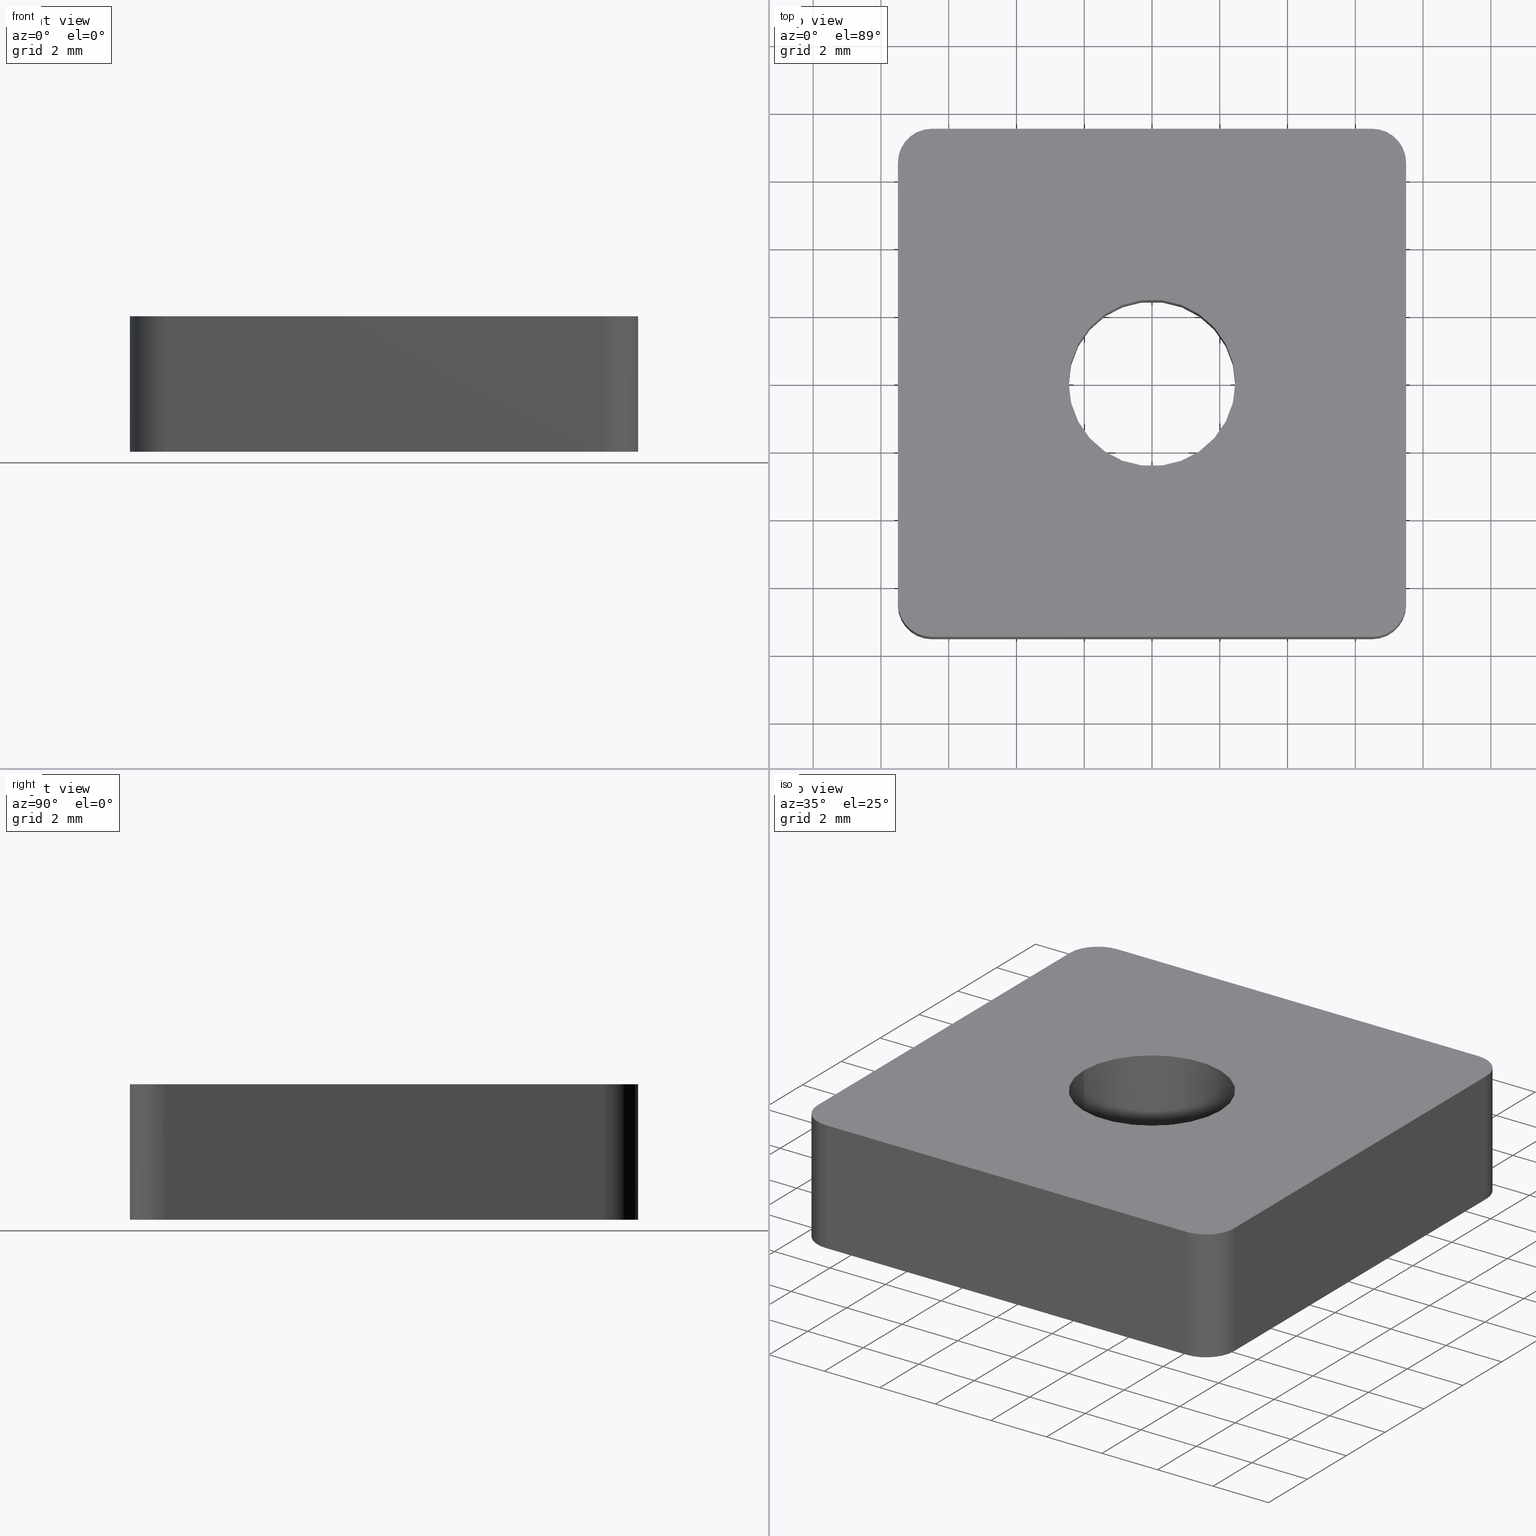
[diagram: canonical four-view strip — front | top / right | iso, engineering-drawing reading convention]
A machine part, canonical four-view strip (front | top / right | iso — engineering-drawing reading convention). The complete STEP part file that produces these views, byte-faithful:
ISO-10303-21;
HEADER;
/* Generated by software containing ST-Developer
 * from STEP Tools, Inc. (www.steptools.com) 
 */

FILE_DESCRIPTION(
/* description */ ('CURSORE ZINC. 15X15X4 M6'),
/* implementation_level */ '2;1');

FILE_NAME(
/* name */ 
'C:\\Users\\tecnico7\\Desktop\\NUOVI DISEGNI 3D\\DDDCU0000041.stp',
/* time_stamp */ '2022-11-18T10:49:37+01:00',
/* author */ ('tecnico7'),
/* organization */ (''),
/* preprocessor_version */ 'ST-DEVELOPER v18.1',
/* originating_system */ 'Autodesk Inventor 2022',
/* authorisation */ '');

FILE_SCHEMA (('AUTOMOTIVE_DESIGN { 1 0 10303 214 3 1 1 }'));
ENDSEC;

DATA;
#10=MECHANICAL_DESIGN_GEOMETRIC_PRESENTATION_REPRESENTATION('',(#13),#371);
#11=SHAPE_REPRESENTATION_RELATIONSHIP('SRR','None',#378,#12);
#12=ADVANCED_BREP_SHAPE_REPRESENTATION('',(#14),#370);
#13=STYLED_ITEM('',(#387),#14);
#14=MANIFOLD_SOLID_BREP('Importato1',#206);
#15=FACE_BOUND('',#40,.T.);
#16=FACE_BOUND('',#42,.T.);
#17=PLANE('',#232);
#18=PLANE('',#233);
#19=PLANE('',#234);
#20=PLANE('',#235);
#21=PLANE('',#236);
#22=PLANE('',#241);
#23=FACE_OUTER_BOUND('',#34,.T.);
#24=FACE_OUTER_BOUND('',#35,.T.);
#25=FACE_OUTER_BOUND('',#36,.T.);
#26=FACE_OUTER_BOUND('',#37,.T.);
#27=FACE_OUTER_BOUND('',#38,.T.);
#28=FACE_OUTER_BOUND('',#39,.T.);
#29=FACE_OUTER_BOUND('',#41,.T.);
#30=FACE_OUTER_BOUND('',#43,.T.);
#31=FACE_OUTER_BOUND('',#44,.T.);
#32=FACE_OUTER_BOUND('',#45,.T.);
#33=FACE_OUTER_BOUND('',#46,.T.);
#34=EDGE_LOOP('',(#136,#137,#138,#139));
#35=EDGE_LOOP('',(#140,#141,#142,#143));
#36=EDGE_LOOP('',(#144,#145,#146,#147));
#37=EDGE_LOOP('',(#148,#149,#150,#151));
#38=EDGE_LOOP('',(#152,#153,#154,#155));
#39=EDGE_LOOP('',(#156,#157,#158,#159,#160,#161,#162,#163));
#40=EDGE_LOOP('',(#164));
#41=EDGE_LOOP('',(#165,#166,#167,#168,#169,#170,#171,#172));
#42=EDGE_LOOP('',(#173));
#43=EDGE_LOOP('',(#174,#175,#176,#177));
#44=EDGE_LOOP('',(#178,#179,#180,#181));
#45=EDGE_LOOP('',(#182,#183,#184,#185));
#46=EDGE_LOOP('',(#186,#187,#188,#189));
#47=LINE('',#316,#64);
#48=LINE('',#321,#65);
#49=LINE('',#323,#66);
#50=LINE('',#325,#67);
#51=LINE('',#326,#68);
#52=LINE('',#330,#69);
#53=LINE('',#332,#70);
#54=LINE('',#334,#71);
#55=LINE('',#335,#72);
#56=LINE('',#339,#73);
#57=LINE('',#341,#74);
#58=LINE('',#343,#75);
#59=LINE('',#344,#76);
#60=LINE('',#348,#77);
#61=LINE('',#350,#78);
#62=LINE('',#352,#79);
#63=LINE('',#353,#80);
#64=VECTOR('',#256,2.4585);
#65=VECTOR('',#261,13.);
#66=VECTOR('',#262,4.);
#67=VECTOR('',#263,13.);
#68=VECTOR('',#264,4.);
#69=VECTOR('',#267,13.);
#70=VECTOR('',#268,4.);
#71=VECTOR('',#269,13.);
#72=VECTOR('',#270,4.);
#73=VECTOR('',#273,13.);
#74=VECTOR('',#274,4.);
#75=VECTOR('',#275,13.);
#76=VECTOR('',#276,4.);
#77=VECTOR('',#279,13.);
#78=VECTOR('',#280,4.);
#79=VECTOR('',#281,13.);
#80=VECTOR('',#282,4.);
#81=CIRCLE('',#230,2.4585);
#82=CIRCLE('',#231,2.4585);
#83=CIRCLE('',#237,1.);
#84=CIRCLE('',#238,1.);
#85=CIRCLE('',#239,1.);
#86=CIRCLE('',#240,1.);
#87=CIRCLE('',#242,1.);
#88=CIRCLE('',#243,1.);
#89=CIRCLE('',#244,1.);
#90=CIRCLE('',#245,1.);
#91=VERTEX_POINT('',#313);
#92=VERTEX_POINT('',#315);
#93=VERTEX_POINT('',#319);
#94=VERTEX_POINT('',#320);
#95=VERTEX_POINT('',#322);
#96=VERTEX_POINT('',#324);
#97=VERTEX_POINT('',#328);
#98=VERTEX_POINT('',#329);
#99=VERTEX_POINT('',#331);
#100=VERTEX_POINT('',#333);
#101=VERTEX_POINT('',#337);
#102=VERTEX_POINT('',#338);
#103=VERTEX_POINT('',#340);
#104=VERTEX_POINT('',#342);
#105=VERTEX_POINT('',#346);
#106=VERTEX_POINT('',#347);
#107=VERTEX_POINT('',#349);
#108=VERTEX_POINT('',#351);
#109=EDGE_CURVE('',#91,#91,#81,.T.);
#110=EDGE_CURVE('',#91,#92,#47,.T.);
#111=EDGE_CURVE('',#92,#92,#82,.T.);
#112=EDGE_CURVE('',#93,#94,#48,.T.);
#113=EDGE_CURVE('',#93,#95,#49,.T.);
#114=EDGE_CURVE('',#95,#96,#50,.T.);
#115=EDGE_CURVE('',#96,#94,#51,.T.);
#116=EDGE_CURVE('',#97,#98,#52,.T.);
#117=EDGE_CURVE('',#98,#99,#53,.T.);
#118=EDGE_CURVE('',#100,#99,#54,.T.);
#119=EDGE_CURVE('',#100,#97,#55,.T.);
#120=EDGE_CURVE('',#101,#102,#56,.T.);
#121=EDGE_CURVE('',#102,#103,#57,.T.);
#122=EDGE_CURVE('',#104,#103,#58,.T.);
#123=EDGE_CURVE('',#104,#101,#59,.T.);
#124=EDGE_CURVE('',#105,#106,#60,.T.);
#125=EDGE_CURVE('',#105,#107,#61,.T.);
#126=EDGE_CURVE('',#107,#108,#62,.T.);
#127=EDGE_CURVE('',#108,#106,#63,.T.);
#128=EDGE_CURVE('',#103,#105,#83,.T.);
#129=EDGE_CURVE('',#106,#93,#84,.T.);
#130=EDGE_CURVE('',#94,#100,#85,.T.);
#131=EDGE_CURVE('',#99,#104,#86,.T.);
#132=EDGE_CURVE('',#107,#102,#87,.T.);
#133=EDGE_CURVE('',#101,#98,#88,.T.);
#134=EDGE_CURVE('',#97,#96,#89,.T.);
#135=EDGE_CURVE('',#95,#108,#90,.T.);
#136=ORIENTED_EDGE('',*,*,#109,.F.);
#137=ORIENTED_EDGE('',*,*,#110,.T.);
#138=ORIENTED_EDGE('',*,*,#111,.F.);
#139=ORIENTED_EDGE('',*,*,#110,.F.);
#140=ORIENTED_EDGE('',*,*,#112,.F.);
#141=ORIENTED_EDGE('',*,*,#113,.T.);
#142=ORIENTED_EDGE('',*,*,#114,.T.);
#143=ORIENTED_EDGE('',*,*,#115,.T.);
#144=ORIENTED_EDGE('',*,*,#116,.T.);
#145=ORIENTED_EDGE('',*,*,#117,.T.);
#146=ORIENTED_EDGE('',*,*,#118,.F.);
#147=ORIENTED_EDGE('',*,*,#119,.T.);
#148=ORIENTED_EDGE('',*,*,#120,.T.);
#149=ORIENTED_EDGE('',*,*,#121,.T.);
#150=ORIENTED_EDGE('',*,*,#122,.F.);
#151=ORIENTED_EDGE('',*,*,#123,.T.);
#152=ORIENTED_EDGE('',*,*,#124,.F.);
#153=ORIENTED_EDGE('',*,*,#125,.T.);
#154=ORIENTED_EDGE('',*,*,#126,.T.);
#155=ORIENTED_EDGE('',*,*,#127,.T.);
#156=ORIENTED_EDGE('',*,*,#122,.T.);
#157=ORIENTED_EDGE('',*,*,#128,.T.);
#158=ORIENTED_EDGE('',*,*,#124,.T.);
#159=ORIENTED_EDGE('',*,*,#129,.T.);
#160=ORIENTED_EDGE('',*,*,#112,.T.);
#161=ORIENTED_EDGE('',*,*,#130,.T.);
#162=ORIENTED_EDGE('',*,*,#118,.T.);
#163=ORIENTED_EDGE('',*,*,#131,.T.);
#164=ORIENTED_EDGE('',*,*,#109,.T.);
#165=ORIENTED_EDGE('',*,*,#126,.F.);
#166=ORIENTED_EDGE('',*,*,#132,.T.);
#167=ORIENTED_EDGE('',*,*,#120,.F.);
#168=ORIENTED_EDGE('',*,*,#133,.T.);
#169=ORIENTED_EDGE('',*,*,#116,.F.);
#170=ORIENTED_EDGE('',*,*,#134,.T.);
#171=ORIENTED_EDGE('',*,*,#114,.F.);
#172=ORIENTED_EDGE('',*,*,#135,.T.);
#173=ORIENTED_EDGE('',*,*,#111,.T.);
#174=ORIENTED_EDGE('',*,*,#130,.F.);
#175=ORIENTED_EDGE('',*,*,#115,.F.);
#176=ORIENTED_EDGE('',*,*,#134,.F.);
#177=ORIENTED_EDGE('',*,*,#119,.F.);
#178=ORIENTED_EDGE('',*,*,#131,.F.);
#179=ORIENTED_EDGE('',*,*,#117,.F.);
#180=ORIENTED_EDGE('',*,*,#133,.F.);
#181=ORIENTED_EDGE('',*,*,#123,.F.);
#182=ORIENTED_EDGE('',*,*,#129,.F.);
#183=ORIENTED_EDGE('',*,*,#127,.F.);
#184=ORIENTED_EDGE('',*,*,#135,.F.);
#185=ORIENTED_EDGE('',*,*,#113,.F.);
#186=ORIENTED_EDGE('',*,*,#128,.F.);
#187=ORIENTED_EDGE('',*,*,#121,.F.);
#188=ORIENTED_EDGE('',*,*,#132,.F.);
#189=ORIENTED_EDGE('',*,*,#125,.F.);
#190=CYLINDRICAL_SURFACE('',#229,2.4585);
#191=CYLINDRICAL_SURFACE('',#246,1.);
#192=CYLINDRICAL_SURFACE('',#247,1.);
#193=CYLINDRICAL_SURFACE('',#248,1.);
#194=CYLINDRICAL_SURFACE('',#249,1.);
#195=ADVANCED_FACE('',(#23),#190,.F.);
#196=ADVANCED_FACE('',(#24),#17,.F.);
#197=ADVANCED_FACE('',(#25),#18,.F.);
#198=ADVANCED_FACE('',(#26),#19,.F.);
#199=ADVANCED_FACE('',(#27),#20,.F.);
#200=ADVANCED_FACE('',(#28,#15),#21,.T.);
#201=ADVANCED_FACE('',(#29,#16),#22,.F.);
#202=ADVANCED_FACE('',(#30),#191,.T.);
#203=ADVANCED_FACE('',(#31),#192,.T.);
#204=ADVANCED_FACE('',(#32),#193,.T.);
#205=ADVANCED_FACE('',(#33),#194,.T.);
#206=CLOSED_SHELL('',(#195,#196,#197,#198,#199,#200,#201,#202,#203,#204,
#205));
#207=DERIVED_UNIT_ELEMENT(#210,1.);
#208=DERIVED_UNIT_ELEMENT(#373,-3.);
#209=DIMENSIONAL_EXPONENTS(1.,0.,0.,0.,0.,0.,0.);
#210=(
CONVERSION_BASED_UNIT('gram',#212)
MASS_UNIT()
NAMED_UNIT(#209)
);
#211=(
MASS_UNIT()
NAMED_UNIT(*)
SI_UNIT(.KILO.,.GRAM.)
);
#212=MASS_MEASURE_WITH_UNIT(MASS_MEASURE(0.001),#211);
#213=DERIVED_UNIT((#207,#208));
#214=MEASURE_REPRESENTATION_ITEM('density measure',
POSITIVE_RATIO_MEASURE(7.85),#213);
#215=PROPERTY_DEFINITION_REPRESENTATION(#220,#217);
#216=PROPERTY_DEFINITION_REPRESENTATION(#221,#218);
#217=REPRESENTATION('material name',(#219),#370);
#218=REPRESENTATION('density',(#214),#370);
#219=DESCRIPTIVE_REPRESENTATION_ITEM('Acciaio','Acciaio');
#220=PROPERTY_DEFINITION('material property','material name',#380);
#221=PROPERTY_DEFINITION('material property','density of part',#380);
#222=DATE_TIME_ROLE('creation_date');
#223=APPLIED_DATE_AND_TIME_ASSIGNMENT(#224,#222,(#380));
#224=DATE_AND_TIME(#225,#226);
#225=CALENDAR_DATE(2012,13,1);
#226=LOCAL_TIME(0,0,0.,#227);
#227=COORDINATED_UNIVERSAL_TIME_OFFSET(0,0,.BEHIND.);
#228=AXIS2_PLACEMENT_3D('placement',#311,#250,#251);
#229=AXIS2_PLACEMENT_3D('',#312,#252,#253);
#230=AXIS2_PLACEMENT_3D('',#314,#254,#255);
#231=AXIS2_PLACEMENT_3D('',#317,#257,#258);
#232=AXIS2_PLACEMENT_3D('',#318,#259,#260);
#233=AXIS2_PLACEMENT_3D('',#327,#265,#266);
#234=AXIS2_PLACEMENT_3D('',#336,#271,#272);
#235=AXIS2_PLACEMENT_3D('',#345,#277,#278);
#236=AXIS2_PLACEMENT_3D('',#354,#283,#284);
#237=AXIS2_PLACEMENT_3D('',#355,#285,#286);
#238=AXIS2_PLACEMENT_3D('',#356,#287,#288);
#239=AXIS2_PLACEMENT_3D('',#357,#289,#290);
#240=AXIS2_PLACEMENT_3D('',#358,#291,#292);
#241=AXIS2_PLACEMENT_3D('',#359,#293,#294);
#242=AXIS2_PLACEMENT_3D('',#360,#295,#296);
#243=AXIS2_PLACEMENT_3D('',#361,#297,#298);
#244=AXIS2_PLACEMENT_3D('',#362,#299,#300);
#245=AXIS2_PLACEMENT_3D('',#363,#301,#302);
#246=AXIS2_PLACEMENT_3D('',#364,#303,#304);
#247=AXIS2_PLACEMENT_3D('',#365,#305,#306);
#248=AXIS2_PLACEMENT_3D('',#366,#307,#308);
#249=AXIS2_PLACEMENT_3D('',#367,#309,#310);
#250=DIRECTION('axis',(0.,0.,1.));
#251=DIRECTION('refdir',(1.,0.,0.));
#252=DIRECTION('center_axis',(0.,0.,1.));
#253=DIRECTION('ref_axis',(1.,0.,0.));
#254=DIRECTION('center_axis',(0.,0.,-1.));
#255=DIRECTION('ref_axis',(1.,0.,0.));
#256=DIRECTION('',(0.,0.,-1.));
#257=DIRECTION('center_axis',(0.,0.,1.));
#258=DIRECTION('ref_axis',(1.,0.,0.));
#259=DIRECTION('center_axis',(1.,0.,0.));
#260=DIRECTION('ref_axis',(0.,0.,-1.));
#261=DIRECTION('',(0.,-1.,0.));
#262=DIRECTION('',(0.,0.,-1.));
#263=DIRECTION('',(0.,-1.,0.));
#264=DIRECTION('',(0.,0.,1.));
#265=DIRECTION('center_axis',(0.,1.,0.));
#266=DIRECTION('ref_axis',(0.,0.,1.));
#267=DIRECTION('',(1.,0.,0.));
#268=DIRECTION('',(0.,0.,1.));
#269=DIRECTION('',(1.,0.,0.));
#270=DIRECTION('',(0.,0.,-1.));
#271=DIRECTION('center_axis',(-1.,0.,0.));
#272=DIRECTION('ref_axis',(0.,0.,1.));
#273=DIRECTION('',(0.,1.,0.));
#274=DIRECTION('',(0.,0.,1.));
#275=DIRECTION('',(0.,1.,0.));
#276=DIRECTION('',(0.,0.,-1.));
#277=DIRECTION('center_axis',(0.,-1.,0.));
#278=DIRECTION('ref_axis',(0.,0.,-1.));
#279=DIRECTION('',(-1.,0.,0.));
#280=DIRECTION('',(0.,0.,-1.));
#281=DIRECTION('',(-1.,0.,0.));
#282=DIRECTION('',(0.,0.,1.));
#283=DIRECTION('center_axis',(0.,0.,1.));
#284=DIRECTION('ref_axis',(1.,0.,0.));
#285=DIRECTION('center_axis',(0.,0.,1.));
#286=DIRECTION('ref_axis',(1.,0.,0.));
#287=DIRECTION('center_axis',(0.,0.,1.));
#288=DIRECTION('ref_axis',(1.,0.,0.));
#289=DIRECTION('center_axis',(0.,0.,1.));
#290=DIRECTION('ref_axis',(1.,0.,0.));
#291=DIRECTION('center_axis',(0.,0.,1.));
#292=DIRECTION('ref_axis',(1.,0.,0.));
#293=DIRECTION('center_axis',(0.,0.,1.));
#294=DIRECTION('ref_axis',(1.,0.,0.));
#295=DIRECTION('center_axis',(0.,0.,-1.));
#296=DIRECTION('ref_axis',(1.,0.,0.));
#297=DIRECTION('center_axis',(0.,0.,-1.));
#298=DIRECTION('ref_axis',(1.,0.,0.));
#299=DIRECTION('center_axis',(0.,0.,-1.));
#300=DIRECTION('ref_axis',(1.,0.,0.));
#301=DIRECTION('center_axis',(0.,0.,-1.));
#302=DIRECTION('ref_axis',(1.,0.,0.));
#303=DIRECTION('center_axis',(0.,0.,-1.));
#304=DIRECTION('ref_axis',(-0.707106781186547,-0.707106781186548,0.));
#305=DIRECTION('center_axis',(0.,0.,-1.));
#306=DIRECTION('ref_axis',(-1.,0.,0.));
#307=DIRECTION('center_axis',(0.,0.,-1.));
#308=DIRECTION('ref_axis',(-0.70710678118655,0.707106781186545,0.));
#309=DIRECTION('center_axis',(0.,0.,-1.));
#310=DIRECTION('ref_axis',(-1.,0.,0.));
#311=CARTESIAN_POINT('',(0.,0.,0.));
#312=CARTESIAN_POINT('Origin',(0.,0.,-21.5870331449229));
#313=CARTESIAN_POINT('',(-2.4585,-3.01079415570377E-16,0.));
#314=CARTESIAN_POINT('Origin',(0.,0.,0.));
#315=CARTESIAN_POINT('',(-2.4585,-3.01079415570377E-16,-4.));
#316=CARTESIAN_POINT('',(-2.4585,-3.01079415570377E-16,-21.5870331449229));
#317=CARTESIAN_POINT('Origin',(0.,0.,-4.));
#318=CARTESIAN_POINT('Origin',(-7.5,-7.14999999999998,0.2));
#319=CARTESIAN_POINT('',(-7.5,6.50000000000001,0.));
#320=CARTESIAN_POINT('',(-7.5,-6.49999999999998,0.));
#321=CARTESIAN_POINT('',(-7.5,6.50000000000001,0.));
#322=CARTESIAN_POINT('',(-7.5,6.50000000000001,-4.));
#323=CARTESIAN_POINT('',(-7.5,6.50000000000001,0.));
#324=CARTESIAN_POINT('',(-7.5,-6.49999999999998,-4.));
#325=CARTESIAN_POINT('',(-7.5,6.50000000000001,-4.));
#326=CARTESIAN_POINT('',(-7.5,-6.49999999999998,-4.));
#327=CARTESIAN_POINT('Origin',(-7.15,-7.5,-4.2));
#328=CARTESIAN_POINT('',(-6.5,-7.5,-4.));
#329=CARTESIAN_POINT('',(6.49999999999999,-7.5,-4.));
#330=CARTESIAN_POINT('',(-6.5,-7.5,-4.));
#331=CARTESIAN_POINT('',(6.49999999999999,-7.5,0.));
#332=CARTESIAN_POINT('',(6.49999999999999,-7.5,-4.));
#333=CARTESIAN_POINT('',(-6.5,-7.5,0.));
#334=CARTESIAN_POINT('',(-6.5,-7.5,0.));
#335=CARTESIAN_POINT('',(-6.5,-7.5,0.));
#336=CARTESIAN_POINT('Origin',(7.49999999999999,-7.14999999999998,-4.2));
#337=CARTESIAN_POINT('',(7.49999999999999,-6.49999999999998,-4.));
#338=CARTESIAN_POINT('',(7.49999999999999,6.50000000000001,-4.));
#339=CARTESIAN_POINT('',(7.49999999999999,-6.49999999999998,-4.));
#340=CARTESIAN_POINT('',(7.49999999999999,6.50000000000001,0.));
#341=CARTESIAN_POINT('',(7.49999999999999,6.50000000000001,-4.));
#342=CARTESIAN_POINT('',(7.49999999999999,-6.49999999999998,0.));
#343=CARTESIAN_POINT('',(7.49999999999999,-6.49999999999998,0.));
#344=CARTESIAN_POINT('',(7.49999999999999,-6.49999999999998,0.));
#345=CARTESIAN_POINT('Origin',(-7.15,7.50000000000001,0.2));
#346=CARTESIAN_POINT('',(6.49999999999999,7.50000000000001,0.));
#347=CARTESIAN_POINT('',(-6.5,7.50000000000001,0.));
#348=CARTESIAN_POINT('',(6.49999999999999,7.50000000000001,0.));
#349=CARTESIAN_POINT('',(6.49999999999999,7.50000000000001,-4.));
#350=CARTESIAN_POINT('',(6.49999999999999,7.50000000000001,0.));
#351=CARTESIAN_POINT('',(-6.5,7.50000000000001,-4.));
#352=CARTESIAN_POINT('',(6.49999999999999,7.50000000000001,-4.));
#353=CARTESIAN_POINT('',(-6.5,7.50000000000001,-4.));
#354=CARTESIAN_POINT('Origin',(-8.25,-8.25,0.));
#355=CARTESIAN_POINT('Origin',(6.49999999999999,6.50000000000001,0.));
#356=CARTESIAN_POINT('Origin',(-6.5,6.50000000000001,0.));
#357=CARTESIAN_POINT('Origin',(-6.5,-6.49999999999998,0.));
#358=CARTESIAN_POINT('Origin',(6.49999999999999,-6.49999999999998,0.));
#359=CARTESIAN_POINT('Origin',(-8.25,-8.25,-4.));
#360=CARTESIAN_POINT('Origin',(6.49999999999999,6.50000000000001,-4.));
#361=CARTESIAN_POINT('Origin',(6.49999999999999,-6.49999999999998,-4.));
#362=CARTESIAN_POINT('Origin',(-6.5,-6.49999999999998,-4.));
#363=CARTESIAN_POINT('Origin',(-6.5,6.50000000000001,-4.));
#364=CARTESIAN_POINT('Origin',(-6.49999999999999,-6.49999999999997,1.E-8));
#365=CARTESIAN_POINT('Origin',(6.49999999999999,-6.49999999999998,1.E-8));
#366=CARTESIAN_POINT('Origin',(-6.49999999999999,6.50000000000001,1.E-8));
#367=CARTESIAN_POINT('Origin',(6.49999999999999,6.50000000000001,1.E-8));
#368=UNCERTAINTY_MEASURE_WITH_UNIT(LENGTH_MEASURE(0.01),#372,
'DISTANCE_ACCURACY_VALUE',
'Maximum model space distance between geometric entities at asserted c
onnectivities');
#369=UNCERTAINTY_MEASURE_WITH_UNIT(LENGTH_MEASURE(0.01),#372,
'DISTANCE_ACCURACY_VALUE',
'Maximum model space distance between geometric entities at asserted c
onnectivities');
#370=(
GEOMETRIC_REPRESENTATION_CONTEXT(3)
GLOBAL_UNCERTAINTY_ASSIGNED_CONTEXT((#368))
GLOBAL_UNIT_ASSIGNED_CONTEXT((#372,#374,#375))
REPRESENTATION_CONTEXT('','3D')
);
#371=(
GEOMETRIC_REPRESENTATION_CONTEXT(3)
GLOBAL_UNCERTAINTY_ASSIGNED_CONTEXT((#369))
GLOBAL_UNIT_ASSIGNED_CONTEXT((#372,#374,#375))
REPRESENTATION_CONTEXT('','3D')
);
#372=(
LENGTH_UNIT()
NAMED_UNIT(*)
SI_UNIT(.MILLI.,.METRE.)
);
#373=(
LENGTH_UNIT()
NAMED_UNIT(*)
SI_UNIT(.CENTI.,.METRE.)
);
#374=(
NAMED_UNIT(*)
PLANE_ANGLE_UNIT()
SI_UNIT($,.RADIAN.)
);
#375=(
NAMED_UNIT(*)
SI_UNIT($,.STERADIAN.)
SOLID_ANGLE_UNIT()
);
#376=SHAPE_DEFINITION_REPRESENTATION(#377,#378);
#377=PRODUCT_DEFINITION_SHAPE('',$,#380);
#378=SHAPE_REPRESENTATION('',(#228),#370);
#379=PRODUCT_DEFINITION_CONTEXT('part definition',#384,'design');
#380=PRODUCT_DEFINITION('DDDCU0000041','DDDCU0000041',#381,#379);
#381=PRODUCT_DEFINITION_FORMATION('A',$,#386);
#382=PRODUCT_RELATED_PRODUCT_CATEGORY('DDDCU0000041','DDDCU0000041',(#386));
#383=APPLICATION_PROTOCOL_DEFINITION('international standard',
'automotive_design',2009,#384);
#384=APPLICATION_CONTEXT(
'Core Data for Automotive Mechanical Design Process');
#385=PRODUCT_CONTEXT('part definition',#384,'mechanical');
#386=PRODUCT('DDDCU0000041','DDDCU0000041','CURSORE ZINC. 15X15X4 M6',(#385));
#387=PRESENTATION_STYLE_ASSIGNMENT((#388));
#388=SURFACE_STYLE_USAGE(.BOTH.,#391);
#389=SURFACE_STYLE_RENDERING_WITH_PROPERTIES($,#395,(#390));
#390=SURFACE_STYLE_TRANSPARENT(0.);
#391=SURFACE_SIDE_STYLE('',(#392,#389));
#392=SURFACE_STYLE_FILL_AREA(#393);
#393=FILL_AREA_STYLE('',(#394));
#394=FILL_AREA_STYLE_COLOUR('',#395);
#395=COLOUR_RGB('',0.83921568627451,0.886274509803922,0.854901960784314);
ENDSEC;
END-ISO-10303-21;
